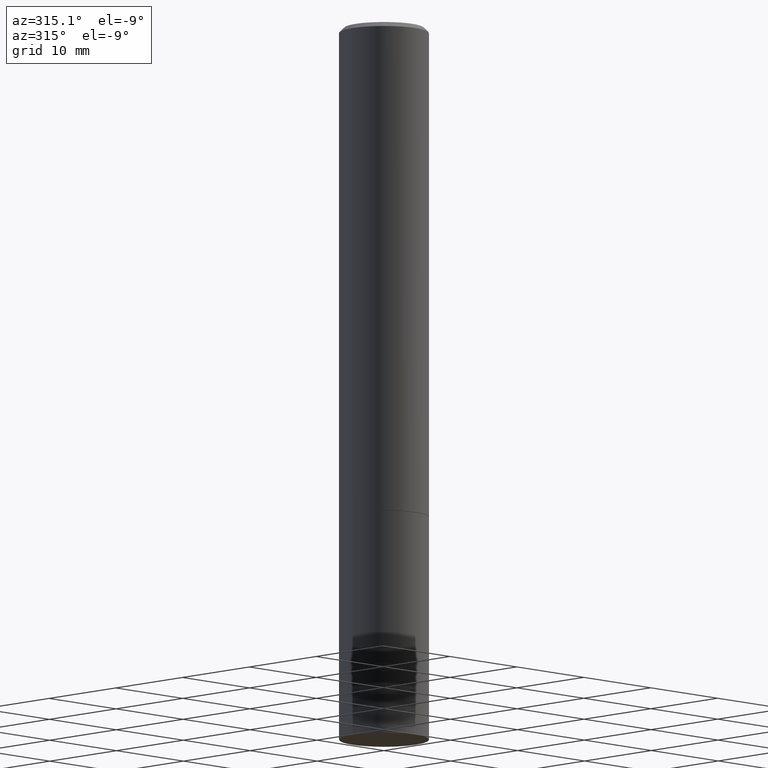
[diagram: clean part render]
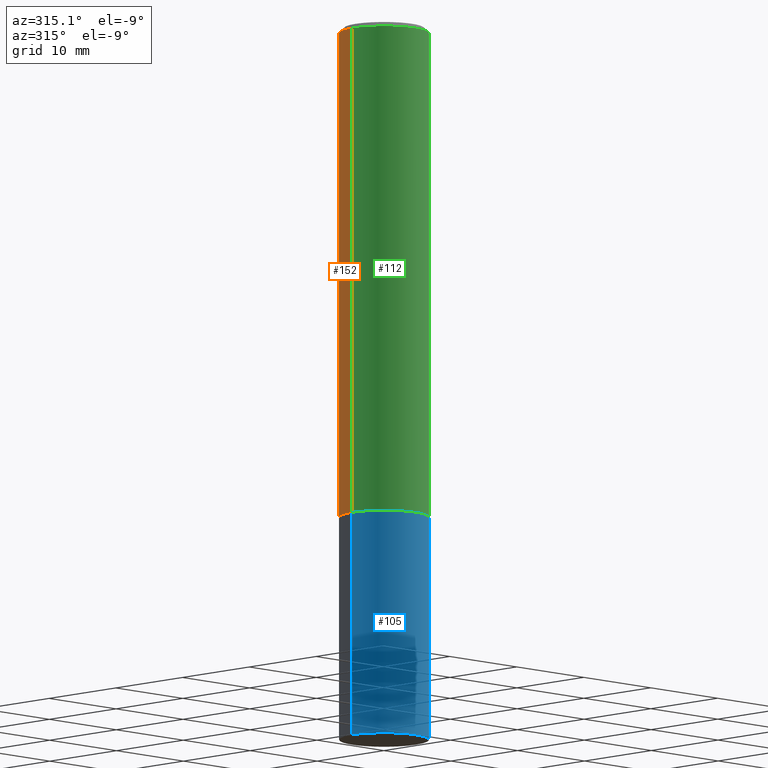
[diagram: same view with three faces highlighted in distinct colors, each labeled with its STEP entity id]
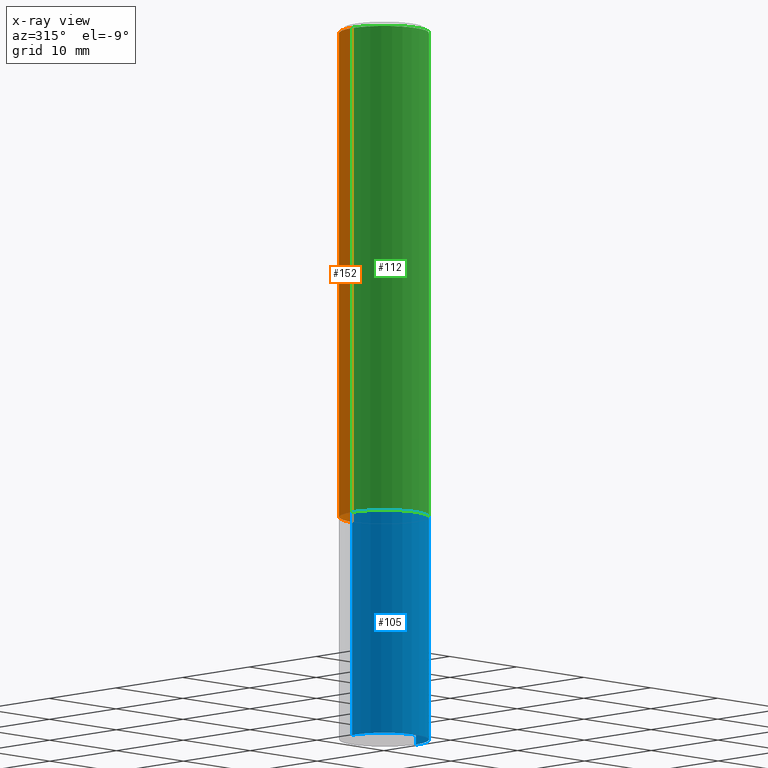
[diagram: x-ray of the same camera — body ghosted, the three highlighted faces saturated]
A machine part, auxiliary view with three faces highlighted in distinct colors.
The next image is the same camera in x-ray (body ghosted, the three faces saturated) — at least one of them is partly hidden behind the body in this view.
Their STEP definitions:

[orange] entity #152 — the highlighted cylindrical surface (partial cylindrical patch) has radius 4.7625 mm, axis along (-0, 0, 1).
#4 = CARTESIAN_POINT ( 'NONE',  ( 5.041333943950659188E-29, -7.197688780025145571E-15, -2.061500000000000110 ) ) ;
#11 = EDGE_CURVE ( 'NONE', #350, #281, #195, .T. ) ;
#22 = VERTEX_POINT ( 'NONE', #358 ) ;
#32 = DIRECTION ( 'NONE',  ( -2.445468806185136597E-29, 3.491481338843145583E-15, 1.000000000000000000 ) ) ;
#66 = DIRECTION ( 'NONE',  ( -2.445468806185136597E-29, 3.491481338843145583E-15, 1.000000000000000000 ) ) ;
#69 = CARTESIAN_POINT ( 'NONE',  ( -0.1874999999999997502, 1.239475875289309935E-15, -0.02000000000000004205 ) ) ;
#70 = EDGE_CURVE ( 'NONE', #22, #350, #144, .T. ) ;
#86 = CARTESIAN_POINT ( 'NONE',  ( 0.1874999999999997502, -1.356173001359023494E-15, -0.02000000000000004205 ) ) ;
#87 = DIRECTION ( 'NONE',  ( -2.445468806185136597E-29, 3.491481338843145583E-15, 1.000000000000000000 ) ) ;
#94 = CARTESIAN_POINT ( 'NONE',  ( 0.000000000000000000, 0.000000000000000000, 0.000000000000000000 ) ) ;
#118 = EDGE_CURVE ( 'NONE', #139, #281, #249, .T. ) ;
#123 = ORIENTED_EDGE ( 'NONE', *, *, #11, .T. ) ;
#129 = CARTESIAN_POINT ( 'NONE',  ( 0.1874999999999998890, -1.309305502066174022E-15, 9.142831454617374006E-30 ) ) ;
#135 = AXIS2_PLACEMENT_3D ( 'NONE', #279, #32, #306 ) ;
#139 = VERTEX_POINT ( 'NONE', #86 ) ;
#144 = CIRCLE ( 'NONE', #260, 0.1875000000000000278 ) ;
#152 = ADVANCED_FACE ( 'NONE', ( #341 ), #256, .T. ) ;
#158 = CARTESIAN_POINT ( 'NONE',  ( -0.1875000000000000278, -2.301491573850814614E-15, -2.061500000000000110 ) ) ;
#164 = ORIENTED_EDGE ( 'NONE', *, *, #70, .T. ) ;
#182 = DIRECTION ( 'NONE',  ( -2.445468806185136877E-29, 3.491481338843145188E-15, 1.000000000000000000 ) ) ;
#195 = LINE ( 'NONE', #250, #363 ) ;
#212 = EDGE_LOOP ( 'NONE', ( #164, #123, #239, #292 ) ) ;
#219 = AXIS2_PLACEMENT_3D ( 'NONE', #94, #87, #314 ) ;
#229 = VECTOR ( 'NONE', #182, 39.37007874015748143 ) ;
#239 = ORIENTED_EDGE ( 'NONE', *, *, #118, .F. ) ;
#249 = CIRCLE ( 'NONE', #135, 0.1874999999999997502 ) ;
#250 = CARTESIAN_POINT ( 'NONE',  ( -0.1874999999999998890, 1.332267629550187060E-15, -9.223003294227942385E-30 ) ) ;
#256 = CYLINDRICAL_SURFACE ( 'NONE', #219, 0.1874999999999998890 ) ;
#260 = AXIS2_PLACEMENT_3D ( 'NONE', #4, #66, #365 ) ;
#279 = CARTESIAN_POINT ( 'NONE',  ( 4.890937612370283668E-31, -6.982962677686305168E-17, -0.02000000000000004205 ) ) ;
#281 = VERTEX_POINT ( 'NONE', #69 ) ;
#290 = LINE ( 'NONE', #129, #229 ) ;
#292 = ORIENTED_EDGE ( 'NONE', *, *, #302, .F. ) ;
#300 = DIRECTION ( 'NONE',  ( -2.445468806185136877E-29, 3.491481338843145188E-15, 1.000000000000000000 ) ) ;
#302 = EDGE_CURVE ( 'NONE', #22, #139, #290, .T. ) ;
#306 = DIRECTION ( 'NONE',  ( 1.000000000000000000, -6.982962677686265133E-15, 0.000000000000000000 ) ) ;
#314 = DIRECTION ( 'NONE',  ( 1.000000000000000000, -6.982962677686265922E-15, 4.876176775795935793E-29 ) ) ;
#341 = FACE_OUTER_BOUND ( 'NONE', #212, .T. ) ;
#350 = VERTEX_POINT ( 'NONE', #158 ) ;
#358 = CARTESIAN_POINT ( 'NONE',  ( 0.1875000000000000278, -8.506994282091320579E-15, -2.061500000000000110 ) ) ;
#363 = VECTOR ( 'NONE', #300, 39.37007874015748143 ) ;
#365 = DIRECTION ( 'NONE',  ( 1.000000000000000000, -6.982962677686266711E-15, 0.000000000000000000 ) ) ;

[blue] entity #105 — the highlighted cylindrical surface (partial cylindrical patch) has radius 4.7625 mm, axis along (-0, 0, 1).
#16 = LINE ( 'NONE', #77, #25 ) ;
#25 = VECTOR ( 'NONE', #347, 39.37007874015748143 ) ;
#46 = CIRCLE ( 'NONE', #113, 0.1875000000000000278 ) ;
#48 = EDGE_CURVE ( 'NONE', #331, #80, #46, .T. ) ;
#54 = VERTEX_POINT ( 'NONE', #311 ) ;
#55 = CARTESIAN_POINT ( 'NONE',  ( -0.1875000000000000278, -7.505544509396524617E-15, -3.000000000000000444 ) ) ;
#60 = CARTESIAN_POINT ( 'NONE',  ( 0.1875000000000000278, -1.309305502066175008E-15, 9.142831454617381013E-30 ) ) ;
#63 = AXIS2_PLACEMENT_3D ( 'NONE', #309, #202, #174 ) ;
#77 = CARTESIAN_POINT ( 'NONE',  ( -0.1875000000000000278, 1.332267629550188046E-15, -9.223003294227947991E-30 ) ) ;
#80 = VERTEX_POINT ( 'NONE', #284 ) ;
#81 = AXIS2_PLACEMENT_3D ( 'NONE', #146, #122, #180 ) ;
#105 = ADVANCED_FACE ( 'NONE', ( #261 ), #280, .T. ) ;
#107 = EDGE_CURVE ( 'NONE', #159, #54, #353, .T. ) ;
#113 = AXIS2_PLACEMENT_3D ( 'NONE', #167, #276, #253 ) ;
#117 = LINE ( 'NONE', #60, #352 ) ;
#122 = DIRECTION ( 'NONE',  ( -2.445468806185136597E-29, 3.491481338843145583E-15, 1.000000000000000000 ) ) ;
#146 = CARTESIAN_POINT ( 'NONE',  ( 7.336406418555409790E-29, -1.047444401652943635E-14, -3.000000000000000444 ) ) ;
#147 = EDGE_CURVE ( 'NONE', #54, #80, #117, .T. ) ;
#159 = VERTEX_POINT ( 'NONE', #55 ) ;
#167 = CARTESIAN_POINT ( 'NONE',  ( 5.043779412756844791E-29, -7.201180261363988578E-15, -2.062500000000000000 ) ) ;
#174 = DIRECTION ( 'NONE',  ( 1.000000000000000000, -6.982962677686265922E-15, 4.876176775795935793E-29 ) ) ;
#180 = DIRECTION ( 'NONE',  ( 1.000000000000000000, -6.982962677686261189E-15, 0.000000000000000000 ) ) ;
#202 = DIRECTION ( 'NONE',  ( -2.445468806185136597E-29, 3.491481338843145583E-15, 1.000000000000000000 ) ) ;
#215 = CARTESIAN_POINT ( 'NONE',  ( -0.1875000000000000278, -7.505544509396524617E-15, -2.062500000000000000 ) ) ;
#223 = ORIENTED_EDGE ( 'NONE', *, *, #147, .T. ) ;
#253 = DIRECTION ( 'NONE',  ( 1.000000000000000000, -6.982962677686266711E-15, 0.000000000000000000 ) ) ;
#261 = FACE_OUTER_BOUND ( 'NONE', #289, .T. ) ;
#273 = ORIENTED_EDGE ( 'NONE', *, *, #319, .F. ) ;
#276 = DIRECTION ( 'NONE',  ( -2.445468806185136597E-29, 3.491481338843145583E-15, 1.000000000000000000 ) ) ;
#280 = CYLINDRICAL_SURFACE ( 'NONE', #63, 0.1875000000000000278 ) ;
#284 = CARTESIAN_POINT ( 'NONE',  ( 0.1875000000000000278, -8.510485763430163586E-15, -2.062500000000000000 ) ) ;
#289 = EDGE_LOOP ( 'NONE', ( #273, #323, #223, #310 ) ) ;
#309 = CARTESIAN_POINT ( 'NONE',  ( 0.000000000000000000, 0.000000000000000000, 0.000000000000000000 ) ) ;
#310 = ORIENTED_EDGE ( 'NONE', *, *, #48, .F. ) ;
#311 = CARTESIAN_POINT ( 'NONE',  ( 0.1875000000000000278, -1.178374951859561136E-14, -3.000000000000000444 ) ) ;
#319 = EDGE_CURVE ( 'NONE', #159, #331, #16, .T. ) ;
#323 = ORIENTED_EDGE ( 'NONE', *, *, #107, .T. ) ;
#331 = VERTEX_POINT ( 'NONE', #215 ) ;
#334 = DIRECTION ( 'NONE',  ( -2.445468806185136877E-29, 3.491481338843145188E-15, 1.000000000000000000 ) ) ;
#347 = DIRECTION ( 'NONE',  ( -2.445468806185136877E-29, 3.491481338843145188E-15, 1.000000000000000000 ) ) ;
#352 = VECTOR ( 'NONE', #334, 39.37007874015748143 ) ;
#353 = CIRCLE ( 'NONE', #81, 0.1875000000000000278 ) ;

[green] entity #112 — the highlighted cylindrical surface (partial cylindrical patch) has radius 4.7625 mm, axis along (-0, 0, 1).
#2 = CIRCLE ( 'NONE', #186, 0.1875000000000000278 ) ;
#3 = FACE_OUTER_BOUND ( 'NONE', #17, .T. ) ;
#11 = EDGE_CURVE ( 'NONE', #350, #281, #195, .T. ) ;
#17 = EDGE_LOOP ( 'NONE', ( #333, #327, #61, #82 ) ) ;
#22 = VERTEX_POINT ( 'NONE', #358 ) ;
#36 = CARTESIAN_POINT ( 'NONE',  ( 5.041333943950659188E-29, -7.197688780025145571E-15, -2.061500000000000110 ) ) ;
#58 = DIRECTION ( 'NONE',  ( 1.000000000000000000, -6.982962677686265133E-15, 0.000000000000000000 ) ) ;
#61 = ORIENTED_EDGE ( 'NONE', *, *, #302, .T. ) ;
#69 = CARTESIAN_POINT ( 'NONE',  ( -0.1874999999999997502, 1.239475875289309935E-15, -0.02000000000000004205 ) ) ;
#82 = ORIENTED_EDGE ( 'NONE', *, *, #183, .F. ) ;
#86 = CARTESIAN_POINT ( 'NONE',  ( 0.1874999999999997502, -1.356173001359023494E-15, -0.02000000000000004205 ) ) ;
#88 = AXIS2_PLACEMENT_3D ( 'NONE', #278, #308, #58 ) ;
#96 = DIRECTION ( 'NONE',  ( 1.000000000000000000, -6.982962677686266711E-15, 0.000000000000000000 ) ) ;
#112 = ADVANCED_FACE ( 'NONE', ( #3 ), #176, .T. ) ;
#129 = CARTESIAN_POINT ( 'NONE',  ( 0.1874999999999998890, -1.309305502066174022E-15, 9.142831454617374006E-30 ) ) ;
#130 = DIRECTION ( 'NONE',  ( -2.445468806185136597E-29, 3.491481338843145583E-15, 1.000000000000000000 ) ) ;
#139 = VERTEX_POINT ( 'NONE', #86 ) ;
#158 = CARTESIAN_POINT ( 'NONE',  ( -0.1875000000000000278, -2.301491573850814614E-15, -2.061500000000000110 ) ) ;
#172 = DIRECTION ( 'NONE',  ( 1.000000000000000000, -6.982962677686265922E-15, 4.876176775795935793E-29 ) ) ;
#176 = CYLINDRICAL_SURFACE ( 'NONE', #265, 0.1874999999999998890 ) ;
#182 = DIRECTION ( 'NONE',  ( -2.445468806185136877E-29, 3.491481338843145188E-15, 1.000000000000000000 ) ) ;
#183 = EDGE_CURVE ( 'NONE', #281, #139, #269, .T. ) ;
#186 = AXIS2_PLACEMENT_3D ( 'NONE', #36, #130, #96 ) ;
#195 = LINE ( 'NONE', #250, #363 ) ;
#229 = VECTOR ( 'NONE', #182, 39.37007874015748143 ) ;
#233 = DIRECTION ( 'NONE',  ( -2.445468806185136597E-29, 3.491481338843145583E-15, 1.000000000000000000 ) ) ;
#250 = CARTESIAN_POINT ( 'NONE',  ( -0.1874999999999998890, 1.332267629550187060E-15, -9.223003294227942385E-30 ) ) ;
#257 = CARTESIAN_POINT ( 'NONE',  ( 0.000000000000000000, 0.000000000000000000, 0.000000000000000000 ) ) ;
#259 = EDGE_CURVE ( 'NONE', #350, #22, #2, .T. ) ;
#265 = AXIS2_PLACEMENT_3D ( 'NONE', #257, #233, #172 ) ;
#269 = CIRCLE ( 'NONE', #88, 0.1874999999999997502 ) ;
#278 = CARTESIAN_POINT ( 'NONE',  ( 4.890937612370283668E-31, -6.982962677686305168E-17, -0.02000000000000004205 ) ) ;
#281 = VERTEX_POINT ( 'NONE', #69 ) ;
#290 = LINE ( 'NONE', #129, #229 ) ;
#300 = DIRECTION ( 'NONE',  ( -2.445468806185136877E-29, 3.491481338843145188E-15, 1.000000000000000000 ) ) ;
#302 = EDGE_CURVE ( 'NONE', #22, #139, #290, .T. ) ;
#308 = DIRECTION ( 'NONE',  ( -2.445468806185136597E-29, 3.491481338843145583E-15, 1.000000000000000000 ) ) ;
#327 = ORIENTED_EDGE ( 'NONE', *, *, #259, .T. ) ;
#333 = ORIENTED_EDGE ( 'NONE', *, *, #11, .F. ) ;
#350 = VERTEX_POINT ( 'NONE', #158 ) ;
#358 = CARTESIAN_POINT ( 'NONE',  ( 0.1875000000000000278, -8.506994282091320579E-15, -2.061500000000000110 ) ) ;
#363 = VECTOR ( 'NONE', #300, 39.37007874015748143 ) ;